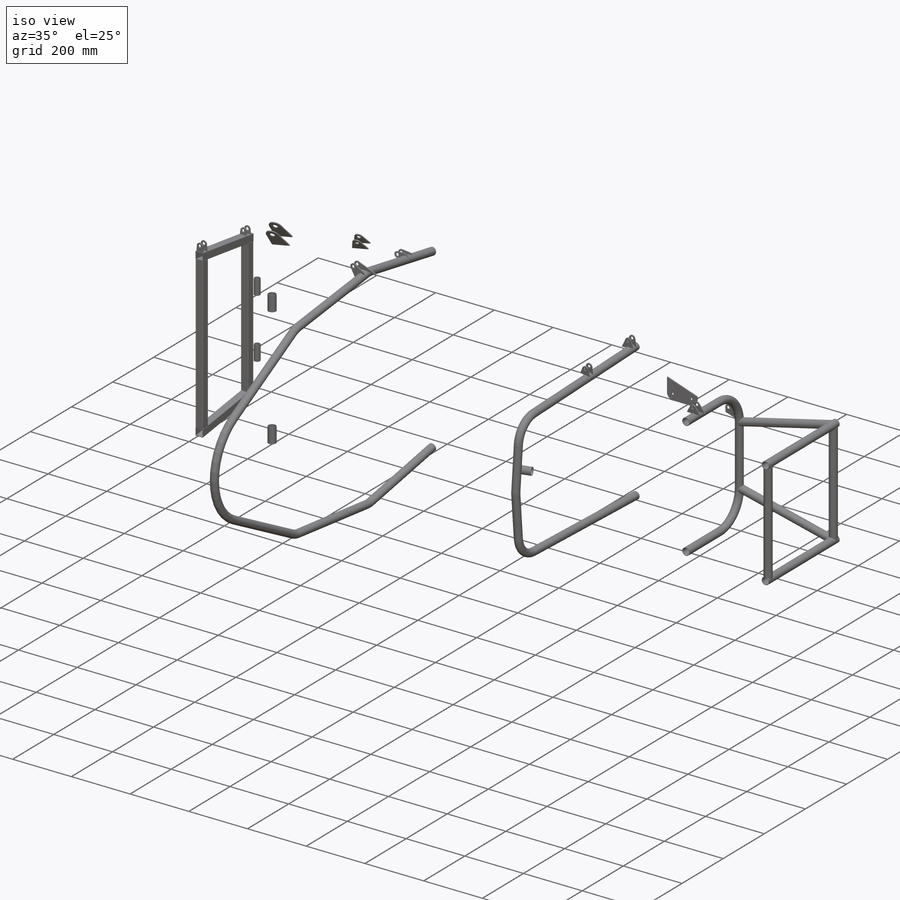
[diagram: iso view]
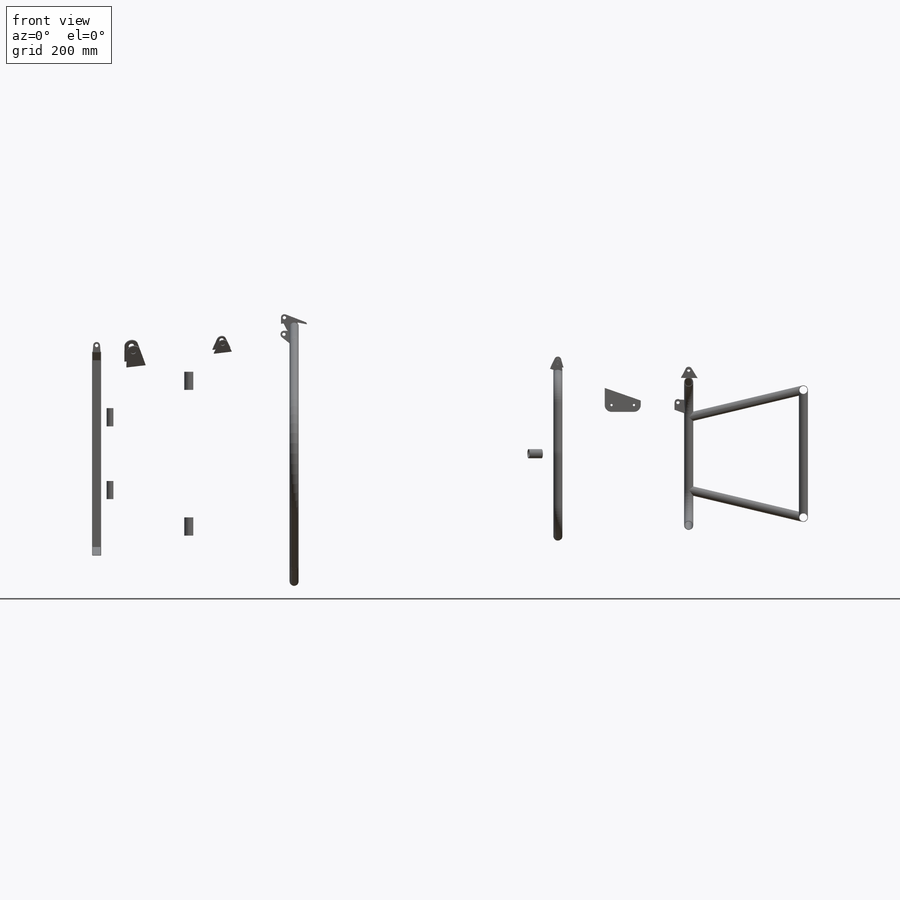
[diagram: front view]
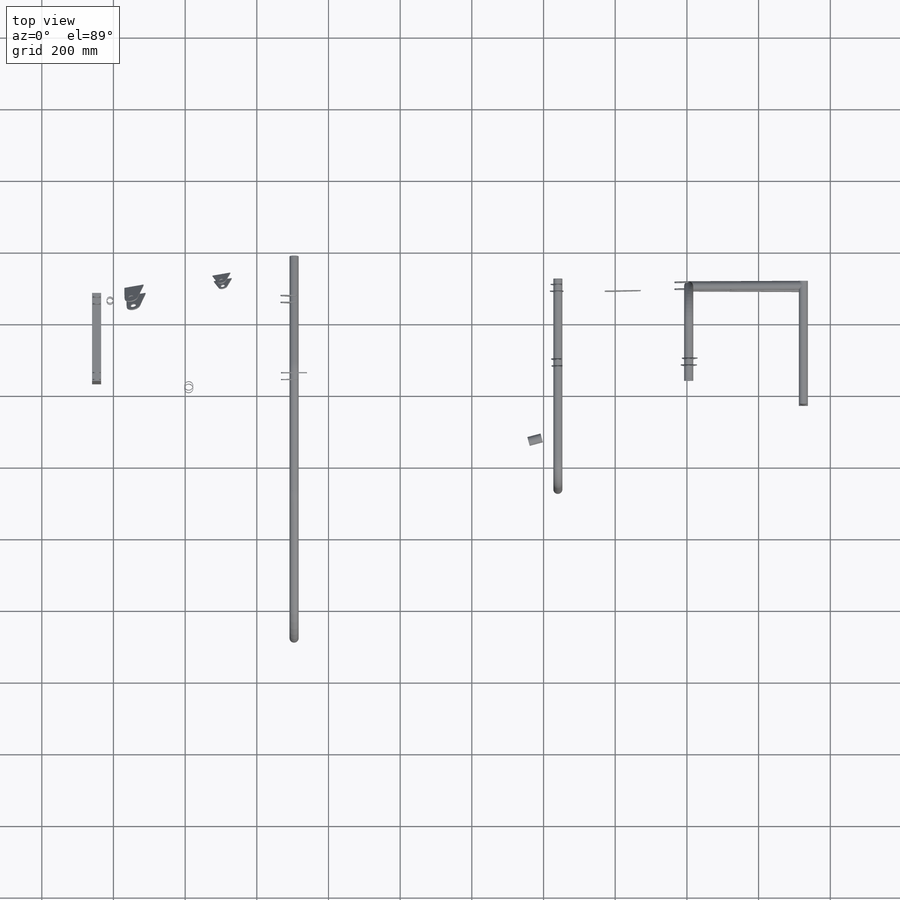
[diagram: top view]
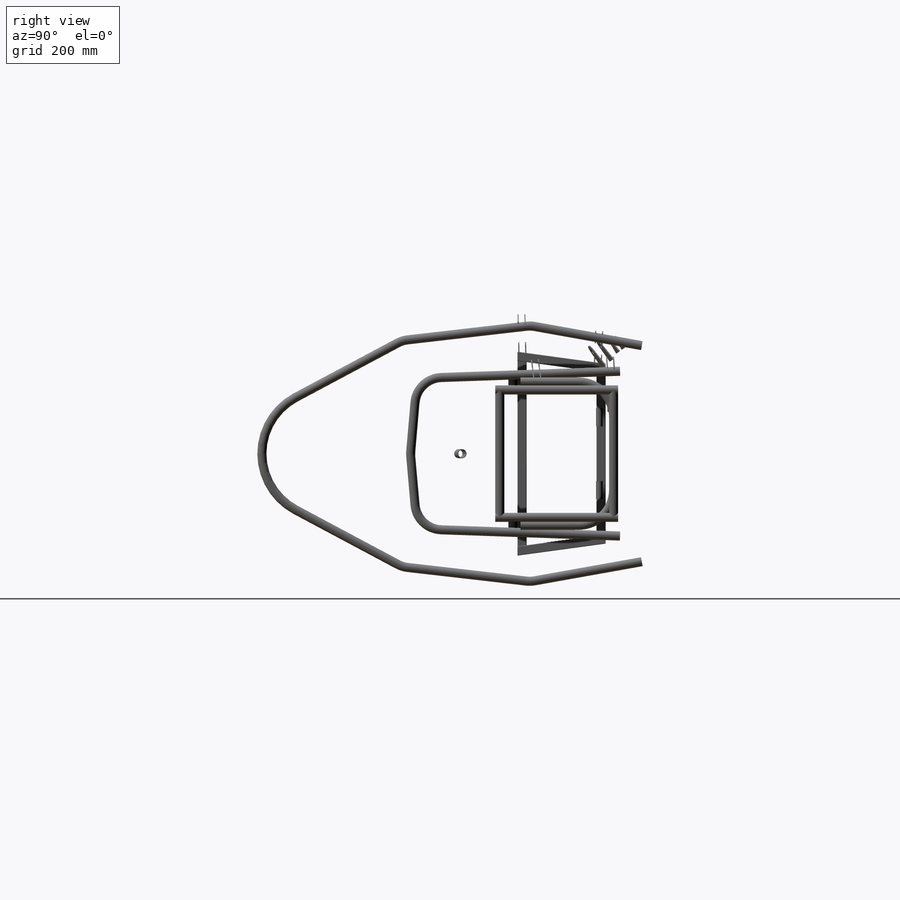
[diagram: right view]
SOLIDWORKS PART (.sldprt)
format: sldprt  version: not decoded by parser v0  size: 8,218,112 bytes
history: native  units: mm
features: sketch x133, sheet_metal_op x100, plane x78, extrude x8, cut_extrude x6, fillet x6, mirror x3, material x1, sweep x1 + 192 further entries (+40 scaffold rows collapsed; 32 parser-record rows omitted)
feature tree (600):
  scaffold x40  (default folders/planes/origin — collapsed)
  material  "6061-T6 (SS)"
  "Cut-List-Item2"
  "Cut-List-Item3"
  "Cut-List-Item4"
  "Cut-List-Item5"
  "Cut-List-Item6"
  "Cut-List-Item7"
  "Cut-List-Item8"
  "Cut-List-Item9"
  "Cut-List-Item10"
  "Cut-List-Item11"
  "Cut-List-Item12"
  "Cut-List-Item13"
  "Cut-List-Item14"
  "Cut-List-Item15"
  "Cut-List-Item16"
  "Cut-List-Item17"
  "Cut-List-Item18"
  "Cut-List-Item19"
  "Cut-List-Item20"
  "Cut-List-Item21"
  "Cut-List-Item22"
  "Cut-List-Item23"
  "Cut-List-Item24"
  "Cut-List-Item25"
  "Cut-List-Item26"
  "Cut-List-Item27"
  "Cut-List-Item28"
  "Cut-List-Item30"
  "Cut-List-Item35"
  "Cut-List-Item37"
  "Cut-List-Item38"
  "Cut-List-Item39"
  "Cut-List-Item40"
  "Cut-List-Item41"
  "Cut-List-Item42"
  "Cut-List-Item43"
  "Cut-List-Item44"
  "Cut-List-Item45"
  "Cut-List-Item46"
  "Cut-List-Item54"
  "Cut-List-Item62"
  "Cut-List-Item63"
  "Cut-List-Item69"
  "Cut-List-Item73"
  "Cut-List-Item75"
  "Cut-List-Item78"
  "Cut-List-Item79"
  "Cut-List-Item80"
  "Cut-List-Item81"
  "Cut-List-Item82"
  "Cut-List-Item83"
  "Cut-List-Item84"
  "Cut-List-Item85"
  "Cut-List-Item86"
  "Cut-List-Item87"
  "Cut-List-Item88"
  "Cut-List-Item89"
  "Cut-List-Item95"
  "Cut-List-Item96"
  "Cut-List-Item98"
  "Cut-List-Item99"
  "Cut-List-Item100"
  "Cut-List-Item101"
  "Cut-List-Item102"
  "Cut-List-Item103"
  "Cut-List-Item105"
  "Cut-List-Item106"
  "Cut-List-Item107"
  "Cut-List-Item108"
  "Cut-List-Item109"
  "Cut-List-Item110"
  "Cut-List-Item111"
  "Cut-List-Item112"
  "Cut-List-Item113"
  "Cut-List-Item114"
  "Cut-List-Item115"
  "Cut-List-Item116"
  "Cut-List-Item117"
  "Cut-List-Item119"
  "Cut-List-Item120"
  "Cut-List-Item123"
  "Cut-List-Item124"
  "Cut-List-Item125"
  "Cut-List-Item126"
  "Cut-List-Item127"
  "Cut-List-Item128"
  "Cut-List-Item129"
  "Cut-List-Item130"
  "Cut-List-Item131"
  "Cut-List-Item132"
  "Cut-List-Item133"
  "Cut-List-Item134"
  "Cut-List-Item135"
  "Cut-List-Item136"
  "Cut-List-Item137"
  "Cut-List-Item138"
  "Cut-List-Item139"
  "Cut-List-Item140"
  "Cut-List-Item141"
  "Cut-List-Item142"
  "Cut-List-Item143"
  "Cut-List-Item144"
  "Cut-List-Item145"
  "Cut-List-Item146"
  "Cut-List-Item147"
  "Cut-List-Item152"
  "Cut-List-Item155"
  "Cut-List-Item157"
  "Cut-List-Item158"
  "Cut-List-Item159"
  "Cut-List-Item163"
  "Cut-List-Item166"
  "Cut-List-Item171"
  "Cut-List-Item172"
  "Cut-List-Item173"
  "Cut-List-Item174"
  "Cut-List-Item176"
  "Cut-List-Item196"
  "Cut-List-Item214"
  "Cut-List-Item232"
  "Cut-List-Item233"
  "Cut-List-Item234"
  "Cut-List-Item236"
  "Cut-List-Item237"
  "Cut-List-Item238"
  "Cut-List-Item239"
  "Cut-List-Item240"
  "Cut-List-Item241"
  "Cut-List-Item242"
  "Cut-List-Item243"
  "Cut-List-Item244"
  "Cut-List-Item245"
  "Cut-List-Item246"
  "Cut-List-Item247"
  "Cut-List-Item248"
  "Cut-List-Item249"
  "Cut-List-Item250"
  "Cut-List-Item251"
  "Cut-List-Item253"
  "Cut-List-Item254"
  "Cut-List-Item255"
  "Cut-List-Item256"
  "Cut-List-Item257"
  "Cut-List-Item258"
  "Cut-List-Item259"
  "Cut-List-Item260"
  "Cut-List-Item261"
  "Cut-List-Item262"
  "Cut-List-Item280"
  "Cut-List-Item281"
  "Cut-List-Item282"
  "Cut-List-Item283"
  "Cut-List-Item284"
  "Cut-List-Item285"
  "Cut-List-Item286"
  "Cut-List-Item287"
  "Cut-List-Item288"
  "Cut-List-Item289"
  "Cut-List-Item290"
  "Cut-List-Item291"
  "Cut-List-Item292"
  "Cut-List-Item293"
  "Cut-List-Item294"
  "Cut-List-Item295"
  "Cut-List-Item296"
  "Cut-List-Item297"
  "Cut-List-Item315"
  "Cut-List-Item316"
  "Cut-List-Item318"
  "Cut-List-Item319"
  "Cut-List-Item320"
  "Cut-List-Item321"
  "Cut-List-Item322"
  "Cut-List-Item323"
  "Cut-List-Item324"
  "Cut-List-Item325"
  "Cut-List-Item326"
  "Cut-List-Item327"
  "Cut-List-Item328"
  "Cut-List-Item329"
  "Cut-List-Item330"
  "Cut-List-Item331"
  "Cut-List-Item332"
  "Cut-List-Item333"
  "Cut-List-Item334"
  "Cut-List-Item335"
  "Cut-List-Item336"
  "Cut-List-Item337"
  "Cut-List-Item338"
  "Cut-List-Item339"
  "Cut-List-Item340"
  plane  "Ground Plane"
  plane  "Car Centerline"
  plane  "Front Axle Centerline"
  parser-record x32  (decoder bookkeeping rows leaked as tree rows — omitted from the tree; the rows remain in map.json)
  sketch  "Wheelbase & Track"  dims[D1=1524.0mm D2=1219.2mm D3=1219.2mm]
  plane  "Rear Axle Centerline"
  sketch  "Front Kingpin"  dims[c1.D1=25.4mm c1.D2=246.38mm c1.D3=114.3mm c1.D4=114.3mm c2.D1=25.4mm]
  sketch  "Rear Kingpin"  dims[D1=63.5mm]
  plane  "Front Caster Plane"
  plane  "Rear Caster Plane"
  sketch  "Front Upright"  dims[c1.D1=6.35mm c1.D2=~421.897093mm c2.D2=3.0deg c2.D1=6.35mm]
  sketch  "Rear Upright"  dims[D1=76.2mm]
  sketch  "Pick Up Point Hights"  dims[D1=144.0mm D2=355.0mm D3=107.95mm D4=318.0mm D5=141.732mm D6=~172.70001mm]
  sketch  "Pick Up Point Plane Locations"  dims[D1=252.0mm D2=295.0mm D3=250.0mm D4=240.0mm D5=0.0mm D6=205.0mm D7=160.0mm D8=896.0mm D9=1447.0mm D10=1447.0mm D11=232.0mm D12=600.5mm D13=~98.320662mm]
  plane  "Front Upper Pick Up Plane"
  plane  "Front Lower Pick Up Plane"
  plane  "Rear Upper Pickup Plane"
  plane  "Rear Lower Pick Up Plane"
  sketch  "Front Upper Pickup Point"
  sketch  "Front Lower Pick Point"
  sketch  "Rear Upper Pick Up Point"
  sketch  "Rear Lower Pick Up Point"
  plane  "Inner Steering Plane"
  plane  "Ourter Steering Plane"
  sketch  "Inner Steering Pivot Point"
  sketch  "Outer Steering Pivot Point"  dims[D1=93.98mm D2=~2.559322mm D3=584.2mm]
  plane  "Steering Arm Plane"
  sketch  "Steering Arm"  dims[D1=21.59mm]
  plane  "Front Bulkhead  Plane"  Offset=525mm
  plane  "Front Control Arm Bulkhead  Plane"  Offset=205mm
  plane  "Bell Crank Location  Plane"  Offset=94.007625mm
  plane  "Front Hoop  Plane"  Offset=160mm
  plane  "Main Hoop  Plane"  Offset=896mm
  plane  "Front Engine Mount Plane"  Offset=1189.99mm
  plane  "Shoulder Harness Plane"  Offset=1150mm
  plane  "Rear Bulkhead Plane"  Offset=1447mm
  plane  "Rear Engine Mount Plane"  Offset=1409.7mm
  sketch  "Front Bulkhead"  dims[D1=177.8mm D2=317.5mm D3=100.0mm]
  sketch  "Front Contorl Arm Bulkhead"  dims[c1.D2=100.0mm c1.D3=197.104mm c1.D1=25.4mm c2.D3=20.0mm c2.D4=50.0mm c2.D5=155.0mm c2.D1=100.0mm c2.D2=100.0mm c3.D4=115.5mm c3.D5=200.0mm c3.D6=31.75mm c3.D7=31.75mm c3.D8=44.45mm c3.D2=200.0mm c4.D4=315.5mm c4.D9=100.0mm c4.D7=131.75mm]
  sketch  "Bell Crank Location"  dims[D1=500.0mm D2=400.0mm]
  sketch  "Front Hoop"  dims[c1.D2=100.0mm c1.D5=76.2mm c1.D6=76.2mm c1.D1=25.4mm c1.D3=20.0mm c1.D4=50.0mm c2.D5=155.0mm c2.D1=177.0deg c2.D3=85.0deg c2.D4=580.0mm c2.D7=107.5mm c2.D8=1160.0mm c3.D4=580.0mm c3.D8=458.0mm c4.D4=580.0mm c4.D9=530.0mm c4.D10=318.5mm c4.D11=31.75mm c4.D12=31.75mm c4.D2=~468.331979mm c5.D2=88.0deg c5.D13=~473.262497mm c6.D13=88.0deg c7.D13=12.7mm c7.D2=~473.262497mm c8.D2=88.0deg c8.D4=558.8mm c8.D13=12.7mm c9.D2=~473.645651mm c10.D2=88.0deg c10.D13=12.7mm c10.D14=25.4mm c10.D15=25.4mm c10.D9=38.1mm]
  sketch  "Main Hoop"  dims[c1.D1=~84.969021mm c1.D2=177.8mm c1.D3=100.0mm c1.D4=120.0mm c1.D8=200.0mm c1.D9=152.4mm c2.D4=76.2mm c2.D9=76.2mm c2.D1=1125.0mm c2.D5=580.0mm c2.D6=640.0mm c2.D7=700.0mm c2.D8=650.0mm c3.D9=325.0mm c3.D6=650.0mm c3.D7=677.088mm c4.D7=90.0deg c5.D7=320.0mm c5.D8=350.0mm c5.D9=325.0mm c5.D1=40.0mm c5.D5=1041.4mm c5.D3=300.0mm c5.D4=650.0mm c5.D6=355.6mm c6.D7=320.0mm c6.D10=304.8mm c6.D11=575.0mm c6.D12=~113.270058mm c6.D13=~313.725049mm c7.D11=342.9mm c7.D14=~460.977223mm c7.D7=635.0mm c7.D8=317.5mm c8.D14=17.8738mm c8.D15=~3.896848mm c9.D14=19.05mm c9.D3=342.9mm c9.D15=178.9936mm]
  sketch  "Front Engine Mount"  dims[c1.D1=355.6mm c1.D2=381.0mm c1.D3=25.4mm c1.D4=50.8mm c2.D3=50.8mm]
  sketch  "Rear Engine Mount"  dims[D1=139.7mm D2=203.2mm D3=25.4mm D4=25.4mm]
  sketch  "Rear Bulkhead"  dims[D1=135.0mm D2=355.6mm D3=270.0mm D4=240.0mm D5=31.75mm D6=~542.355749mm]
  sketch  "Front Section"  dims[c1.D1=~199.80622mm c1.D2=~99.824417mm c1.D3=~99.824417mm c2.D1=~99.824417mm c2.D2=~60.175583mm c2.D3=~60.175583mm c3.D2=200.0mm c3.D3=200.0mm c4.D2=200.0mm c4.D1=~29.911993mm c4.D3=19.05mm c5.D2=~28.560245mm c5.D3=19.05mm c6.D2=19.05mm c6.D1=19.05mm]
  plane  "Left Seat Bar Plane"
  sketch  "Left Seat Bar"  dims[D1=350.0mm D2=107.5mm D3=400.0mm D4=3.175mm D5=36.825mm]
  plane  "Right Seat Bar Plane"
  sketch  "Right Seat Bar"  dims[D2=350.0mm D1=107.5mm D3=400.0mm D4=3.175mm]
  sketch  "Mid Section"  dims[c1.D1=~161.59819mm c2.D1=~40.067138deg c2.D3=45.0deg c2.D2=~545.211722mm c3.D3=558.8mm c3.D2=598.8mm c3.D1=520.7mm c4.D2=~481.996551mm c5.D2=178.0deg]
  sketch  "Rear Section"  dims[c1.D1=~418.312567mm c2.D1=~141.328496deg c3.D1=139.7mm c3.D2=139.7mm c3.D3=~513.46873mm c3.D4=571.5mm c4.D3=520.7mm c4.D4=~372.309894mm c5.D4=~46.325817deg]
  sketch  "Rear Shoulder Harness"
  sketch  "Bulkheads"  dims[c1.D1=28.0mm c1.D2=~119.904199mm c1.D3=~103.28492mm c1.D8=125.0mm c1.D4=~163.604842mm c2.D3=125.0mm c2.D5=~34.464184mm c2.D4=50.0mm c2.D6=~125.618053mm c3.D4=100.0mm c3.D7=~125.618053mm c3.D6=100.0mm c3.D3=~101.48912mm c4.D4=~155.059239mm c4.D6=~155.059239mm c4.D7=200.0mm c4.D2=~162.918471mm c4.D3=165.1mm c5.D2=~115.943906mm c5.D3=165.1mm c6.D2=120.65mm]
  plane  "Plane33"  Offset=12.7mm
  sketch  "Sketch140"  dims[c1.D1=19.05mm c1.D3=12.7mm c1.D4=~2.38125mm c1.D2=127.0mm c2.D3=3.175mm c2.D4=12.7mm c3.D3=12.7mm c3.D5=1.651mm]
  extrude  "Boss-Extrude7"  Depth=584.2mm
  sketch  "Sketch19"  dims[c1.D2=25.4mm c1.D4=5.0mm c1.D1=5.0mm c1.D3=5.0mm c2.D2=5.0mm c2.D1=~301.969946mm c3.D1=165.0deg c3.D3=~132.700473mm c4.D3=120.0deg c4.D2=~247.301405mm c5.D2=150.0deg c5.D5=360.0mm c5.D6=12.7mm c6.D2=~200.033868mm c7.D2=140.0deg c7.D3=~39.385027mm c8.D3=30.0deg c8.D2=75.0mm c8.D5=0.4mm c8.D7=0.4mm c9.D2=1.5875mm c9.D4=0.4mm c10.D2=1.5875mm c10.D3=0.4mm c11.D2=0.4mm c11.D3=0.0mm c11.D4=0.4mm c12.D2=0.4mm]
  extrude  "Boss-Extrude5"  Depth=700mm
  sketch  "Sketch20"  dims[c1.D2=50.8mm c1.D1=50.8mm c1.D5=38.1mm c1.D4=150.0mm c1.D6=50.0mm c1.D3=180.0mm c2.D4=560.0mm c2.D3=~70.638086mm c3.D3=30.0deg c4.D3=60.0mm c5.D3=~11.485516deg c6.D3=360.0mm c7.D3=35.0deg c8.D3=~74.568841mm c9.D3=35.0deg c10.D3=360.0mm c11.D3=35.0deg c12.D3=~367.082583mm c13.D3=35.0deg c13.D1=12.7mm c14.D3=0.0mm]
  cut_extrude  "Cut-Extrude1"  Depth=381mm
  sheet_metal_op  "Sheet-Metal3"
  plane  "Upper Main Hoop Pick Up Plane"
  plane  "Lower Main Hoop Pick UpPlane"
  plane  "Front Upper Control Arm Plane"
  plane  "Front Lower Control Arm Plane"
  plane  "Rear Upper Control Arm Plane"
  plane  "Rear Lower Control Arm Plane"
  sketch  "Lower Main Hoop Pick up"  dims[D1=63.5mm]
  sketch  "Upper Main Hoop Pick Up"  dims[D1=76.2mm]
  sketch  "Front Upper Control Arm"  dims[D1=29.3624mm]
  sketch  "Front Lower Control Arm"  dims[D2=29.3624mm D3=29.3624mm D1=31.75mm D4=~267.629397mm D5=~149.015848mm D6=~355.444885mm D7=~476.540429mm D8=~361.438445mm]
  sketch  "Rear Upper Control Arm"  dims[c1.D8=29.3624mm c1.D9=29.3624mm c1.D1=~110.838247mm c2.D1=24.53deg c2.D2=~657.688541mm c3.D2=~25.651375deg c3.D3=38.1mm c3.D4=38.1mm c4.D4=~49.043325deg c4.D5=~139.059088mm c5.D5=~73.498429deg c5.D6=~259.192447mm c6.D6=~37.714903deg c6.D7=~259.192447mm c7.D7=~24.513325deg c7.D10=~54.807536mm c8.D10=25.0deg c8.D2=~259.192447mm c8.D4=~11.850145mm c8.D6=~92.473677mm c8.D7=38.1mm c8.D11=38.1mm c8.D12=77.0mm c8.D13=~600.876474mm]
  sketch  "Rear Lower Control Arm"  dims[c1.D3=29.3624mm c1.D4=29.3624mm c1.D1=~288.509868mm c2.D1=~28.33046deg c2.D2=~179.092339mm c3.D2=~71.638279deg c3.D5=~288.509868mm c3.D6=~9.660359mm c3.D7=~75.212647mm c3.D8=77.0mm c3.D9=~657.852164mm c3.D1=~704.341303mm c4.D2=~311.052713mm c4.D3=~523.450075mm c4.D1=~289.28541mm c5.D2=~636.313217mm c5.ModelUUID=0.0 c5.UUID=0.0 c6.ModelUUID=0.0]
  sheet_metal_op  "3d8a765b-9786-49a9-adde-999932569387"  UUID=0 ModelUUID=0
  sheet_metal_op  "42f033f4-fc91-4b87-b2c8-a256b7330928"  UUID=0 ModelUUID=0
  sheet_metal_op  "a2ba2246-3d43-4041-891a-4bacd250c875"  UUID=0 ModelUUID=0
  sketch  "Suspension 3D"  dims[c1.D1=25.4mm c1.D2=25.4mm c1.D3=25.4mm c1.D4=25.4mm c1.D5=25.4mm c1.D6=38.1mm c1.D7=38.1mm c2.D6=38.1mm c3.D6=24.53deg c3.D7=38.1mm c4.D7=24.53deg c4.D8=25.4mm]
  plane  "Plane6"
  sketch  "Sketch1"  dims[In_dia=26.6446mm Out_dia=25.4mm D1=2.413mm]
  plane  "Plane7"
  sketch  "Sketch11"  dims[c1.In_dia=26.6446mm c1.Out_dia=33.401mm c1.D1=26.6446mm c1.D2=25.4mm c2.D1=1.651mm]
  plane  "Plane39"
  sketch  "Sketch1117"  dims[c1.In_dia=26.6446mm c1.Out_dia=33.401mm c1.D1=33.401mm c1.D2=25.4mm c2.D1=1.651mm]
  plane  "Plane8"
  sketch  "Sketch12"  dims[c1.In_dia=26.6446mm c1.Out_dia=33.401mm c1.D1=26.6446mm c1.D2=25.4mm c2.D1=1.2446mm]
  plane  "Plane40"
  sketch  "Sketch1118"  dims[c1.In_dia=26.6446mm c1.Out_dia=33.401mm c1.D1=33.401mm c1.D2=25.4mm c2.D1=1.2446mm]
  plane  "Plane29"
  sketch  "Sketch137"  dims[In_dia=26.6446mm Out_dia=19.05mm D1=1.2446mm]
  sheet_metal_op  "7760be12-0002-4a7c-be24-1d444792871d"  UUID=0 ModelUUID=0
  sheet_metal_op  "17e17926-a0e3-445e-96c1-7b09854e1254"  UUID=0 ModelUUID=0
  sheet_metal_op  "3e1b9957-6c8c-40a6-b0bb-3a5c7a32fb39"  UUID=0 ModelUUID=0
  sheet_metal_op  "d874e8ce-f654-4d65-ad95-5c6cbe45f6e8"  UUID=0 ModelUUID=0
  sheet_metal_op  "111fdb5b-272b-4c92-9de6-86f8a0930280"  UUID=0 ModelUUID=0
  sheet_metal_op  "c2de5d8e-7a4a-4a77-b5f9-35aa7e08ed18"  UUID=0 ModelUUID=0
  sheet_metal_op  "40ed5f46-f323-4248-88fc-c69e05582a01"  UUID=0 ModelUUID=0
  sheet_metal_op  "72e00b6a-56b9-4e06-beb5-190d9579875a"  UUID=0 ModelUUID=0
  sheet_metal_op  "dd4c7ce9-d57c-4b40-a125-1c564b356b7f"  UUID=0 ModelUUID=0
  sheet_metal_op  "ebc6834c-6195-4708-8dff-ba8533df7bf4"  UUID=0 ModelUUID=0
  sheet_metal_op  "15b6b82d-5c1b-40b9-bfbb-a3cd6f856f13"  UUID=0 ModelUUID=0
  sheet_metal_op  "449da438-ec5c-4860-abee-fb79650abd49"  UUID=0 ModelUUID=0
  sheet_metal_op  "49b27500-d1ad-48e5-8498-a1be6764a1b2"  UUID=0 ModelUUID=0
  sheet_metal_op  "7704ef96-23cd-405e-8799-fac6407bde6d"  UUID=0 ModelUUID=0
  sheet_metal_op  "c3197f2c-039e-48bc-ae73-6b248de4b40a"  UUID=0 ModelUUID=0
  sheet_metal_op  "371bba4a-b22f-45a7-a9af-bd0598c15551"  UUID=0 ModelUUID=0
  sheet_metal_op  "4f437bc8-b66c-452f-9625-7fdb120b3b5a"  UUID=0 ModelUUID=0
  sheet_metal_op  "9284d0ff-5647-4a5b-a4b7-5a61d2e46372"  UUID=0 ModelUUID=0
  sheet_metal_op  "4cef6323-e612-4a97-b3f9-55965aa717b9"  UUID=0 ModelUUID=0
  sheet_metal_op  "0b56aeaa-56eb-47ac-9fd1-5fa6d65af2a4"  UUID=0 ModelUUID=0
  sheet_metal_op  "a1e43eb4-cb0a-4e39-a5c3-d7894bbfe95c"  UUID=0 ModelUUID=0
  sheet_metal_op  "0421b22a-c2f7-4a69-9e21-b86013849ace"  UUID=0 ModelUUID=0
  sheet_metal_op  "ca0664f1-3fc9-49ec-be7a-c2eb4cb8580b"  UUID=0 ModelUUID=0
  sheet_metal_op  "130cfdfa-1dc5-4bf5-a136-7c18b6a7b7f7"  UUID=0 ModelUUID=0
  sheet_metal_op  "a0cc87c6-620e-4001-85bc-5e9e444f5e79"  UUID=0 ModelUUID=0
  sheet_metal_op  "8c2c1f9b-f012-48f9-89a0-8e466e914c22"  UUID=0 ModelUUID=0
  sheet_metal_op  "76879f6d-09da-437d-893f-074bd55f15c6"  UUID=0 ModelUUID=0
  sheet_metal_op  "acc1b660-10a9-4c1b-9494-1a48cf7b73af"  UUID=0 ModelUUID=0
  sheet_metal_op  "85ee0a00-ee98-43d9-9632-3fe540b9d42f"  UUID=0 ModelUUID=0
  sheet_metal_op  "ee4fc26d-0114-4365-816f-418af3bcc7d1"  UUID=0 ModelUUID=0
  sheet_metal_op  "6d781e61-f49a-4f7e-9c93-6607f0d78044"  UUID=0 ModelUUID=0
  sheet_metal_op  "336370fb-6cb2-4eb0-977b-59ea6648e696"  UUID=0 ModelUUID=0
  sheet_metal_op  "55d6e233-a01b-40a8-8395-331eee27d083"  UUID=0 ModelUUID=0
  sheet_metal_op  "96537ab1-51f5-4ffa-a08b-51838e52902f"  UUID=0 ModelUUID=0
  sheet_metal_op  "429fea87-a52b-4195-9b7c-15df3d2ae430"  UUID=0 ModelUUID=0
  sheet_metal_op  "fe5066a7-109e-4a2b-b7f5-6221d7e4ad0c"  UUID=0 ModelUUID=0
  sheet_metal_op  "b52de758-a89f-4d4c-adaf-d5129d323384"  UUID=0 ModelUUID=0
  sheet_metal_op  "602e718f-7885-4192-866e-049b85b569d6"  UUID=0 ModelUUID=0
  sheet_metal_op  "f6c76d24-e0f6-4e2b-abc0-32345c5a41a1"  UUID=0 ModelUUID=0
  sheet_metal_op  "89cfbf22-a09e-40e4-ae09-9b65d2c173b8"  UUID=0 ModelUUID=0
  sheet_metal_op  "6bcfc4cb-166a-4d18-94f9-d0057903f235"  UUID=0 ModelUUID=0
  sheet_metal_op  "a4c5af26-36b8-4f64-b6ef-dc1c2cafe3a5"  UUID=0 ModelUUID=0
  sheet_metal_op  "b4cb9f04-a3ee-40a7-ba93-ba73c9f16ec7"  UUID=0 ModelUUID=0
  sheet_metal_op  "4e271434-424a-4a77-9bca-d3afdb7caf56"  UUID=0 ModelUUID=0
  sheet_metal_op  "69b280a4-ea8e-4fe0-8259-4605b8ea2317"  UUID=0 ModelUUID=0
  sheet_metal_op  "711cec02-2b09-45fb-bcfb-87109deb0858"  UUID=0 ModelUUID=0
  sheet_metal_op  "aa9e2421-eea5-4287-b59f-7dfd670dd706"  UUID=0 ModelUUID=0
  sheet_metal_op  "713d0d84-1f94-4206-a4a6-3ce1547e2fa8"  UUID=0 ModelUUID=0
  sheet_metal_op  "3aeeba9f-a430-4fdb-8260-461027b18ace"  UUID=0 ModelUUID=0
  sheet_metal_op  "83848c9f-8601-4a34-9da0-4eb46427ba4b"  UUID=0 ModelUUID=0
  sheet_metal_op  "4e312b40-5669-4c49-aa8b-c7980c74549b"  UUID=0 ModelUUID=0
  sheet_metal_op  "bd2d8523-8e95-43ab-ac4a-b289af674972"  UUID=0 ModelUUID=0
  sheet_metal_op  "94a09ce8-9a91-4f72-a861-434d03001730"  UUID=0 ModelUUID=0
  sheet_metal_op  "cad7e036-3a62-4949-88d9-6330cf6cb78b"  UUID=0 ModelUUID=0
  sheet_metal_op  "23f66330-9266-40ac-9000-e03abaf248b8"  UUID=0 ModelUUID=0
  sheet_metal_op  "310fb77d-b2bd-4940-bf0b-68cf023ff7c0"  UUID=0 ModelUUID=0
  sheet_metal_op  "d9429534-40bf-4127-aae4-24e8e1f67248"  UUID=0 ModelUUID=0
  sheet_metal_op  "3b3dc5a7-ab68-473b-9ba0-c3cd6fa22f91"  UUID=0 ModelUUID=0
  sheet_metal_op  "42bb29b9-330a-4e0e-9567-92d7597bfb02"  UUID=0 ModelUUID=0
  sheet_metal_op  "d4cb21b6-e1dd-475c-b0dc-069c16878204"  UUID=0 ModelUUID=0
  sheet_metal_op  "f691fc28-69f9-4467-b20b-6f5aee88aabd"  UUID=0 ModelUUID=0
  sheet_metal_op  "8e1a3c1a-6e9c-4371-add3-e6b28f02041d"  UUID=0 ModelUUID=0
  sheet_metal_op  "9c27b248-273e-4077-a173-74550e322bbb"  UUID=0 ModelUUID=0
  sheet_metal_op  "4457cf2d-7539-48c1-98a0-5527f6a6ba6c"  UUID=0 ModelUUID=0
  sheet_metal_op  "f2530d01-3505-45e5-8d4e-5140f4c85e28"  UUID=0 ModelUUID=0
  sheet_metal_op  "b3eb10d9-33a5-40c8-bc8c-c297f92252b0"  UUID=0 ModelUUID=0
  sheet_metal_op  "cff2c2a8-4441-4583-949d-28bd124ba5d5"  UUID=0 ModelUUID=0
  sheet_metal_op  "439b8fc7-324c-46f1-a553-4acaa5d873a4"  UUID=0 ModelUUID=0
  sheet_metal_op  "3162d906-db60-46ed-8b5b-2751e0e35f72"  UUID=0 ModelUUID=0
  sheet_metal_op  "eb2e399d-3936-46d1-b29f-d7fd7bd5b826"  UUID=0 ModelUUID=0
  sheet_metal_op  "0bc79a00-0c1f-4a4d-bfa5-7c413025b0ea"  UUID=0 ModelUUID=0
  sheet_metal_op  "607118c1-4028-4fe6-94d7-977f9674d412"  UUID=0 ModelUUID=0
  sheet_metal_op  "1d1ed5b8-08e0-49d3-9b40-3856a886293b"  UUID=0 ModelUUID=0
  sheet_metal_op  "7c22b7a7-b716-4d38-96fa-dce2c9f77553"  UUID=0 ModelUUID=0
  sheet_metal_op  "3ac912bf-77d0-4bdf-9d78-9b2d7041f952"  UUID=0 ModelUUID=0
  sheet_metal_op  "b7307972-5b96-4829-b22c-09df125b905f"  UUID=0 ModelUUID=0
  sheet_metal_op  "d8ae8171-efc5-4013-b911-9c62f2d03a03"  UUID=0 ModelUUID=0
  sheet_metal_op  "ed3da968-901d-4503-9e39-2e6a2eb8f98b"  UUID=0 ModelUUID=0
  sheet_metal_op  "afa6cf9f-0115-40e0-a4b7-1b4b81e65cbe"  UUID=0 ModelUUID=0
  sheet_metal_op  "6dd9c477-0ad9-4729-8ab7-d7d2d47309ee"  UUID=0 ModelUUID=0
  sheet_metal_op  "b7521a2f-486c-4b8e-84b8-c86320c29c3a"  UUID=0 ModelUUID=0
  sheet_metal_op  "13996138-ec11-4c61-8cfd-c976ca4ecc8a"  UUID=0 ModelUUID=0
  sheet_metal_op  "98e0b9a3-c8b0-4b1f-b6e7-8f12b93560f2"  UUID=0 ModelUUID=0
  sheet_metal_op  "ac2ed653-5db3-48a4-bc43-555ccc20ce3f"  UUID=0 ModelUUID=0
  sheet_metal_op  "f95ee264-0eda-4afb-b631-70a50b2634a0"  UUID=0 ModelUUID=0
  sheet_metal_op  "58fad594-5281-44da-98a4-ce09a0961cec"  UUID=0 ModelUUID=0
  sheet_metal_op  "3b02d711-5673-44e7-9b32-cc90b3b8f892"  UUID=0 ModelUUID=0
  sheet_metal_op  "12e3c5fd-b3cb-4cc1-9ac7-6ac0ca4873c9"  UUID=0 ModelUUID=0
  sheet_metal_op  "67454701-d2e3-4da8-b745-6f034ce46b95"  UUID=0 ModelUUID=0
  sheet_metal_op  "10495fdd-3aba-495a-ae16-fc982896df79"  UUID=0 ModelUUID=0
  sheet_metal_op  "cf331148-5af3-4a40-a559-3f68c8493f9d"  UUID=0 ModelUUID=0
  sheet_metal_op  "54e871a9-e1d9-49e6-9c47-eb2594255b48"  UUID=0 ModelUUID=0
  sheet_metal_op  "1b130cc7-1b3d-4101-8951-8cfdb289a469"  UUID=0 ModelUUID=0
  sheet_metal_op  "21f6c9ea-0051-406c-83c5-10207a565a0a"  UUID=0 ModelUUID=0
  sheet_metal_op  "b43d41a0-5516-4767-bc7c-bd86e5b55b50"  UUID=0 ModelUUID=0
  sheet_metal_op  "e223b0fb-2980-4b3b-b596-897ab747c77d"  UUID=0 ModelUUID=0
  plane  "Plane38"
  sketch  "Sketch1112"  dims[c1.D1=6.35mm c1.D2=6.35mm c1.D3=6.35mm c1.D4=6.35mm c1.D5=6.35mm c1.D6=6.35mm c1.D7=6.35mm c1.D8=6.35mm c2.D1=6.604mm c2.D2=6.604mm c2.D3=6.604mm c2.D4=6.604mm c3.D1=12.7mm c3.D2=~4.762496mm c3.Thickness=1.651mm c3.D4=12.9032mm c3.D5=12.9286mm c3.V_leg=25.4mm c3.H_leg=50.8mm c4.D4=50.3428mm c4.D5=50.8508mm c5.D4=~41.274964mm c5.D5=~41.274964mm]
  sketch  "Table line"  dims[c1.D1=~34.324449mm c1.D2=14.0mm c1.D3=736.0mm c1.D4=365.0mm c2.D3=551.0mm c2.D4=736.0mm c2.D5=1101.0mm c2.D6=1421.0mm]
  plane  "Front Section Mid Tube Plane"
  plane  "Steering Rack Mounting Plane"  Offset=12.7mm
  sketch  "Front Lower Control Arm Pushrod Mount Point"  dims[D1=38.1mm D2=34.29mm D3=38.1mm D4=34.29mm]
  sketch  "Front Damper Mount"  dims[c1.D1=50.8mm c1.D2=25.4mm c1.D3=~11.038671mm c1.D4=12.7mm c2.D3=12.7mm]
  sketch  "Front Bell Crank Pivot"  dims[D1=44.45mm D2=33.02mm D3=12.7mm D4=38.735mm D5=~25.977954mm D6=~488.976258mm]
  plane  "Front Pushrod Damper Plane_Left"
  plane  "Front Pushrod Damper Plane_Right"
  sketch  "Front Pushrod Damper Mockup_Left"  dims[c1.D4=25.4mm c1.D5=~16.24579mm c1.D1=238.125mm c1.D2=63.5mm c1.D3=101.6mm c2.D5=2.286mm c2.D6=~144.915669mm c2.D7=~271.392642mm c2.D8=~16.341087mm c2.D9=~61.361379mm c2.D10=~61.005255mm c3.D10=~85.488402deg c3.D11=101.6mm c4.D11=~82.421465deg]
  sketch  "Front Pushrod Damper Mockup_Right"  dims[D1=238.125mm D2=101.6mm D3=63.5mm]
  sketch  "Push Rod Mock Up"
  plane  "Plane14"
  sketch  "Sketch112"  dims[In_dia=15.7988mm Out_dia=21.336mm D1=19.05mm D2=1.4732mm]
  sketch  "Sketch115"
  extrude  "Front Bell Crank Post"  Depth=12.7mm
  sketch  "3DSketch2"
  plane  "Plane34"
  sketch  "Sketch144"  dims[In_dia=26.6446mm Out_dia=25.4mm D1=2.286mm]
  mirror  "Mirror4"
  sketch  "Rear Lower Control Arm  Pushrod Mount"  dims[c1.D1=38.1mm c1.D2=~113.329607mm c1.D3=22.225mm c2.D2=34.29mm]
  sketch  "Rear Damper Mount"  dims[D1=44.45mm D2=12.7mm D3=50.8mm]
  sketch  "Rear Bell Crank Pivot"  dims[c1.D1=~78.973976mm c1.D4=25.4mm c1.D2=~51.623299mm c1.D3=~22.047244mm c2.D4=19.05mm c2.D1=31.75mm c2.D2=25.4mm c3.D1=12.7mm]
  plane  "Rear Bell Crank Plane"
  sketch  "Rear Pushrod Damper Mockup"  dims[c1.D4=25.4mm c1.D5=~15.961799mm c1.D1=238.125mm c1.D2=4.25mm c1.D3=76.2mm c2.D5=2.286mm c2.D2=114.3mm c2.D6=~114.363467mm c2.D7=~113.69388mm c2.D8=~25.330012mm c3.D7=114.3mm c3.D6=63.5mm c3.D1=237.49mm c3.D2=~100.381453mm c4.D1=238.125mm c4.D2=114.3mm]
  plane  "Plane15"
  sketch  "Sketch113"  dims[c1.In_dia=15.7988mm c1.Out_dia=21.336mm c1.D1=19.05mm c1.D2=~12.350305mm c2.D2=1.4732mm]
  sketch  "Sketch114"
  sketch  "RDM2"  dims[c1.D1=19.05mm c1.D2=31.75mm c1.D3=~18.14835mm c1.D4=0.0mm c2.D3=3.175mm]
  sketch  "RBellCrankPost"  dims[c1.D1=~224.513335mm c1.D2=~107.479677mm c1.D3=101.6mm c2.D1=~11.497178mm c2.D2=~11.497178mm c3.D1=47.625mm]
  plane  "Plane25"
  sketch  "RPRGeom"  dims[D1=25.4mm D2=238.125mm D3=114.3mm D4=63.5mm]
  plane  "Plane26"
  sketch  "Sketch132"  dims[In_dia=15.7988mm Out_dia=21.336mm D1=12.7mm]
  sketch  "3DSketch1"  dims[c1.D1=38.1mm c1.D2=6.35mm c1.D3=~17.581684mm c1.D4=12.7mm c2.D3=12.7mm]
  plane  "Plane27"
  plane  "Front Of Pass Through Template"  Offset=127mm
  plane  "Front Upper Control Arm Lower PickUp Plane"  Offset=9.525mm
  plane  "Front Upper Control Arm Upper PickUp Plane"  Offset=9.525mm
  plane  "Front Lower Control Arm Lower PickUp Plane"  Offset=9.525mm
  plane  "Front Lower Control Arm Upper PickUp Plane"  Offset=9.525mm
  plane  "Rear Upper Control Arm Lower PickUp Plane"  Offset=9.525mm
  plane  "Rear Upper Control Arm Upper PickUp Plane"  Offset=9.525mm
  plane  "Rear Lower Control Arm Upper PickUp Plane"  Offset=9.525mm
  plane  "Rear Lower Control Arm Lower PcikUp Plane"  Offset=9.525mm
  sketch  "Sketch152"
  sketch  "Sketch153"  dims[c1.D1=19.05mm c1.D5=9.525mm c2.D1=9.525mm c2.D2=4.7625mm c2.D3=~13.024126mm c3.D3=90.0deg c4.D3=4.7625mm c4.D4=6.35mm c4.D1=1.5875mm]
  fillet  "Fillet2"  Radius=2.54mm
  fillet  "Fillet3"  Radius=12.7mm
  sketch  "Sketch154"
  sketch  "Sketch155"  dims[c1.D4=9.525mm c1.D5=9.525mm c1.D1=4.7625mm c1.D2=6.35mm c1.D3=4.7625mm c2.D4=~6.384571mm c2.D1=1.5875mm]
  fillet  "Fillet4"  Radius=12.7mm
  fillet  "Fillet5"  Radius=2.54mm
  sketch  "Sketch156"
  sketch  "Sketch157"  dims[c1.D4=9.525mm c1.D5=9.525mm c1.D6=29.3624mm c1.D1=6.35mm c1.D2=4.7625mm c1.D3=4.7625mm c2.D1=4.7625mm c2.D2=63.5mm c2.D3=~72.091965mm c3.D1=1.5875mm]
  fillet  "Fillet17"  Radius=5.08mm
  sketch  "Sketch158"
  sketch  "Sketch160"  dims[c1.D1=9.525mm c1.D2=9.525mm c1.D3=6.35mm c1.D4=6.35mm c1.D5=4.7625mm c2.D4=4.7625mm c2.D5=9.525mm c3.D4=6.35mm c3.D1=1.5875mm]
  fillet  "Fillet19"  Radius=5.08mm
  sketch  "Sketch161"
  sketch  "Sketch162"  dims[c1.D1=9.525mm c1.D2=9.525mm c1.D3=6.35mm c2.D1=1.5875mm]
  sketch  "Sketch163"
  sketch  "Sketch164"  dims[c1.D1=9.525mm c1.D2=19.05mm c1.D3=4.7625mm c2.D1=1.5875mm]
  sketch  "Sketch165"
  sketch  "Sketch166"  dims[c1.D1=9.525mm c1.D2=19.05mm c1.D3=19.05mm c1.D4=4.7625mm c2.D1=1.5875mm]
  sketch  "Sketch167"
  sketch  "Sketch168"  dims[c1.D1=9.525mm c1.D2=19.05mm c1.D3=4.7625mm c1.D4=6.35mm c1.D5=4.7625mm c2.D1=1.5875mm]
  sketch  "Sketch169"
  sketch  "Sketch170"  dims[c1.D1=9.525mm c1.D2=19.05mm c1.D3=25.4mm c1.D4=19.05mm c2.D1=1.5875mm]
  sketch  "Sketch171"
  sketch  "Sketch172"  dims[c1.D1=9.525mm c1.D2=19.05mm c1.D3=25.4mm c2.D1=1.5875mm]
  sketch  "Sketch173"
  sketch  "Sketch174"  dims[c1.D1=9.525mm c1.D2=19.05mm c1.D3=~24.315845mm c2.D1=1.5875mm]
  sketch  "Sketch175"
  sketch  "Sketch176"  dims[c1.D1=9.525mm c1.D2=19.05mm c1.D3=30.48mm c2.D1=1.5875mm]
  sketch  "Sketch177"
  sketch  "Sketch178"  dims[c1.D1=9.525mm c1.D2=19.05mm c1.D3=31.75mm c2.D1=1.5875mm]
  sketch  "Sketch179"
  sketch  "Sketch180"  dims[c1.D1=9.525mm c1.D2=19.05mm c1.D3=38.1mm c1.D4=~12.694059mm c2.D1=1.5875mm]
  sketch  "Sketch181"
  sketch  "Sketch182"  dims[c1.D1=9.525mm c1.D2=19.05mm c1.D3=~16.047331mm c2.D1=1.5875mm]
  sketch  "Sketch183"
  sketch  "Sketch184"  dims[c1.D1=9.525mm c1.D2=19.05mm c1.D3=~11.639457mm c2.D1=1.5875mm]
  plane  "Rear Pull Rod Plane_Left"
  plane  "Rear Pull Rod Plane_Right"
  sketch  "Sketch185"  dims[c1.D1=38.1mm c1.D2=50.8mm c1.D3=35.56mm c1.D4=62.23mm c1.D5=50.8mm c2.D5=120.0deg c2.D6=298.45mm c2.D7=101.6mm c2.D8=256.032mm]
  sketch  "Sketch1115"  dims[c1.D1=69.85mm c1.D2=243.84mm c1.D3=35.56mm c1.D4=64.77mm c1.D5=35.56mm c2.D5=130.785deg c2.D6=38.1mm c2.D7=329.3872mm c2.D8=50.8mm]
  sketch  "3DSketch3"
  plane  "Lower Bell Crank Mount Plane"  Offset=12.7mm
  plane  "Upper Bell Crank Mount Plane"  Offset=12.7mm
  sketch  "Sketch186"  dims[D1=38.1mm D2=~97.312221mm]
  sketch  "Sketch187"  dims[c1.D1=38.1mm c1.D2=~38.078328mm c2.D1=3.175mm]
  sketch  "Sketch189"
  sketch  "Sketch190"  dims[c1.D1=38.1mm c1.D2=15.875mm c2.D1=3.175mm]
  plane  "Lower Shock Mount Plane"  Offset=9.525mm
  plane  "Upper Shock Mount Plane"  Offset=9.525mm
  sketch  "Sketch191"
  sketch  "Sketch192"  dims[c1.D1=12.7mm c1.D2=25.4mm c1.D3=50.8mm c1.D4=25.4mm c2.D1=1.5875mm]
  sketch  "Sketch193"
  sketch  "Sketch195"  dims[c1.D1=12.7mm c1.D2=25.4mm c1.D3=25.4mm c1.D4=50.8mm c1.D5=~50.800929mm c2.D1=1.5875mm]
  sketch  "Sketch199"
  sketch  "Sketch200"  dims[c1.D2=6.35mm c1.D3=38.1mm c1.D1=62.545mm c2.D3=~48.086997mm c2.D5=~42.241792mm c2.D6=~26.103198mm c2.D4=0.0mm c2.D1=3.175mm]
  plane  "Rear Sway Bar Plane"  Offset=25.4mm
  plane  "Front Sway Bar Plane"  Offset=361.95mm
  sketch  "3DSketch4"  dims[c1.D1=~34.06035mm c1.D7=19.05mm c1.D2=~31.988201mm c2.D7=19.05mm c2.D3=19.05mm c2.D4=514.35mm c2.D5=38.1mm c3.D5=15.0deg c3.D6=63.5mm c3.D2=63.5mm c3.D1=63.5mm]
  plane  "Plane35"
  sketch  "Sketch1100"  dims[c1.In_dia=26.6446mm c1.Out_dia=33.401mm c1.D1=26.6446mm c1.D2=25.4mm c2.D1=1.651mm]
  plane  "Plane36"
  sketch  "Sketch1101"  dims[c1.In_dia=15.7988mm c1.Out_dia=21.336mm c1.D1=15.7988mm c1.D2=19.05mm c2.D1=1.2446mm]
  sketch  "Sketch1102"  dims[D1=25.0mm D2=92.5mm D3=85.0mm D4=85.0mm D5=~669.335536mm D6=25.0mm]
  plane  "Plane37"
  sketch  "Sketch1104"  dims[c1.D1=6.35mm c1.D2=6.35mm c1.D3=6.35mm c1.D4=6.35mm c1.D5=6.35mm c1.D6=6.35mm c1.D7=6.35mm c1.D8=6.35mm c2.D1=6.604mm c2.D2=6.604mm c2.D3=6.604mm c2.D4=6.604mm c3.D1=3.175mm c3.D2=~4.762496mm c3.Thickness=1.651mm c3.D4=12.9032mm c3.D5=12.9286mm c3.V_leg=38.1mm c3.H_leg=50.8mm c4.D4=50.3428mm c4.D5=50.8508mm c5.D4=~41.274964mm c5.D5=~41.274964mm]
  plane  "Diff Carrier Layout"  Offset=1463.675mm
  sketch  "Diff Carrier Location"  dims[c1.D3=~30.917517mm c1.D4=25.4mm c2.D3=74.0156mm c2.D1=12.7mm c2.D2=12.7mm]
  cut_extrude  "Cut-Extrude3"  Depth=31.75mm
  sketch  "Sketch1106"
  extrude  "Boss-Extrude9"  Depth=31.75mm
  sketch  "Sketch1107"  dims[D1=9.525mm]
  cut_extrude  "Cut-Extrude4"  [1 undecoded]
  sketch  "Sketch1108"  dims[D2=9.525mm D1=0.0mm]
  cut_extrude  "Cut-Extrude5"  [1 undecoded]
  sketch  "Sketch1109"  dims[D1=~4.710346mm]
  cut_extrude  "Cut-Extrude6"  [1 undecoded]
  sketch  "Sketch1110"  dims[D1=~6.545166mm]
  cut_extrude  "Cut-Extrude7"  [1 undecoded]
  plane  "Plane41"
  sketch  "Sketch1119"  dims[D1=254.0mm D2=92.075mm D3=6.35mm]
  plane  "Plane42"
  sketch  "Sketch1124"  dims[c1.D4=6.35mm c1.D5=6.35mm c2.D4=6.35mm c2.D5=6.35mm c2.RI=6.858mm c2.D2=3.175mm c2.RA=2.54mm c2.Depth=76.2mm c2.BF=38.0492mm c2.D6=6.35mm c3.D2=45.0deg c3.D6=~9.775613mm c4.D2=12.84deg c4.TW=6.5532mm c4.D7=~8.667528deg c4.D8=~7.604041mm c5.D2=~5.342953mm c5.D8=~5.388932mm c6.D2=6.35mm c6.D7=6.35mm c6.D8=5.0deg c7.D2=9.463deg c7.flange=~2.157665mm c7.TF=6.9342mm c7.D1=~6.598741mm c8.D2=25.4mm c8.D3=3.175mm]
  plane  "Plane43"
  sketch  "Sketch1125"  dims[c1.D1=3.175mm c1.D2=19.05mm c1.D3=19.05mm c2.D3=115.0deg c2.D4=19.05mm c3.D3=19.05mm c3.D2=19.05mm c4.D3=19.05mm c4.D2=19.05mm c5.D3=1.4859mm c5.D4=19.05mm c6.D4=105.0deg]
  plane  "Plane46"
  sketch  "Sketch1130"  dims[D3=0.635mm D1=12.7mm D2=2.9718mm]
  sweep  "Sweep1"
  mirror  "Mirror6"
  plane  "Plane50"
  plane  "Plane47"
  plane  "Plane48"
  plane  "Plane49"
  sketch  "Sketch1131"  dims[c1.D1=127.0mm c1.D2=63.5mm c2.D1=63.5mm c2.D4=2.54mm c2.D5=9.525mm c2.D2=50.8mm c2.D3=~47.662593mm c3.D3=90.0deg c4.D3=38.1mm c4.D2=12.7mm c5.D3=38.1mm c5.D6=15.875mm]
  extrude  "Boss-Extrude10"  Depth=1.905mm
  sketch  "Sketch1132"  dims[D3=177.8mm D5=2.54mm D1=12.7mm D2=19.05mm D4=38.1mm]
  extrude  "Boss-Extrude11"  Depth=1.905mm
  sketch  "Sketch1133"  dims[D2=152.4mm D5=2.54mm D1=12.7mm D3=38.1mm D4=19.05mm]
  extrude  "Boss-Extrude12"  Depth=1.905mm
  sketch  "Sketch1134"  dims[D4=9.525mm D6=177.8mm D7=2.54mm D1=12.7mm D2=44.45mm D3=12.7mm D5=9.525mm]
  extrude  "Boss-Extrude13"  Depth=1.905mm
  mirror  "Mirror9"
  "Flat-Pattern3"
  sketch  "Bend-Lines3"
decode coverage: 215 of 257 modeling features carry decoded parameters; 192 rows unclassified (native names shown)
note: ~ marks probable driven/reference dimensions
note: 4 parameter values undecoded
summary: no parameter record found for 4 features
note: suppression state not decoded; provenance and decode notes live in map.json
